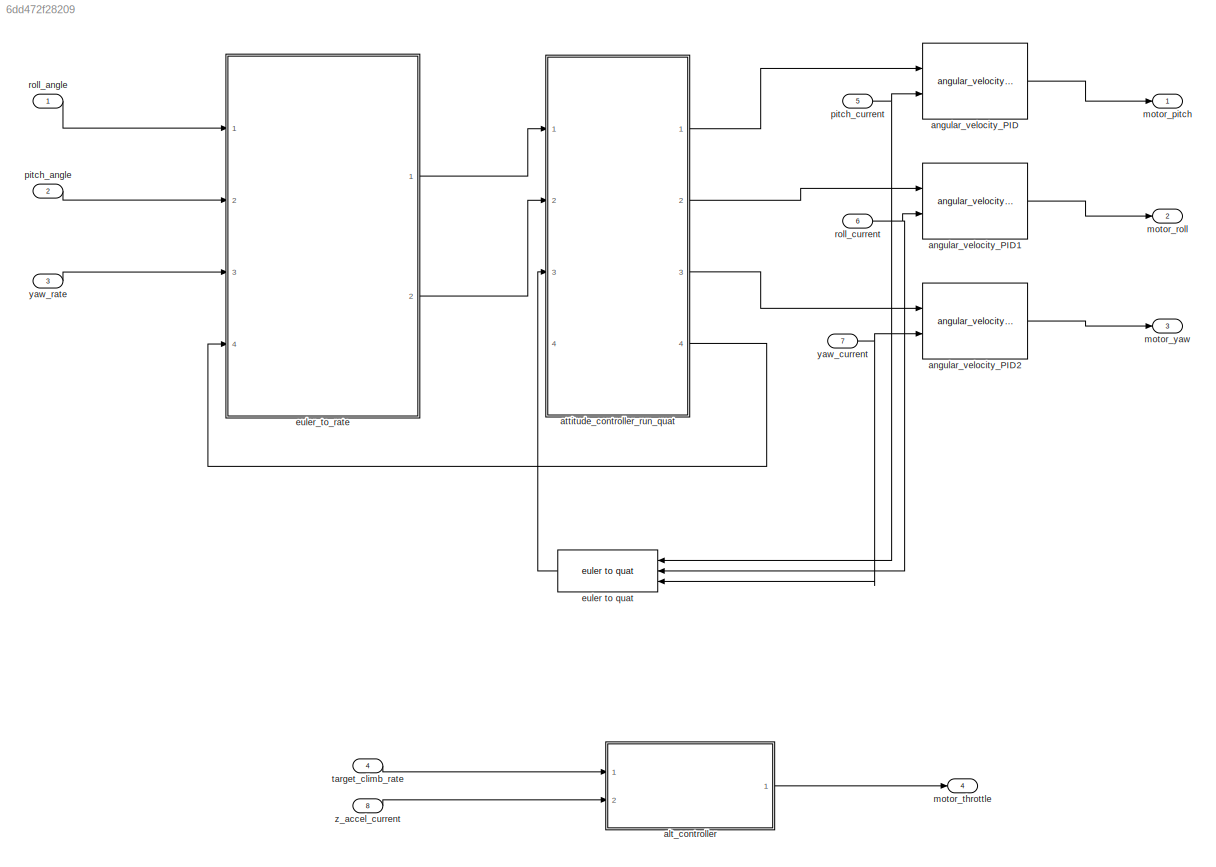
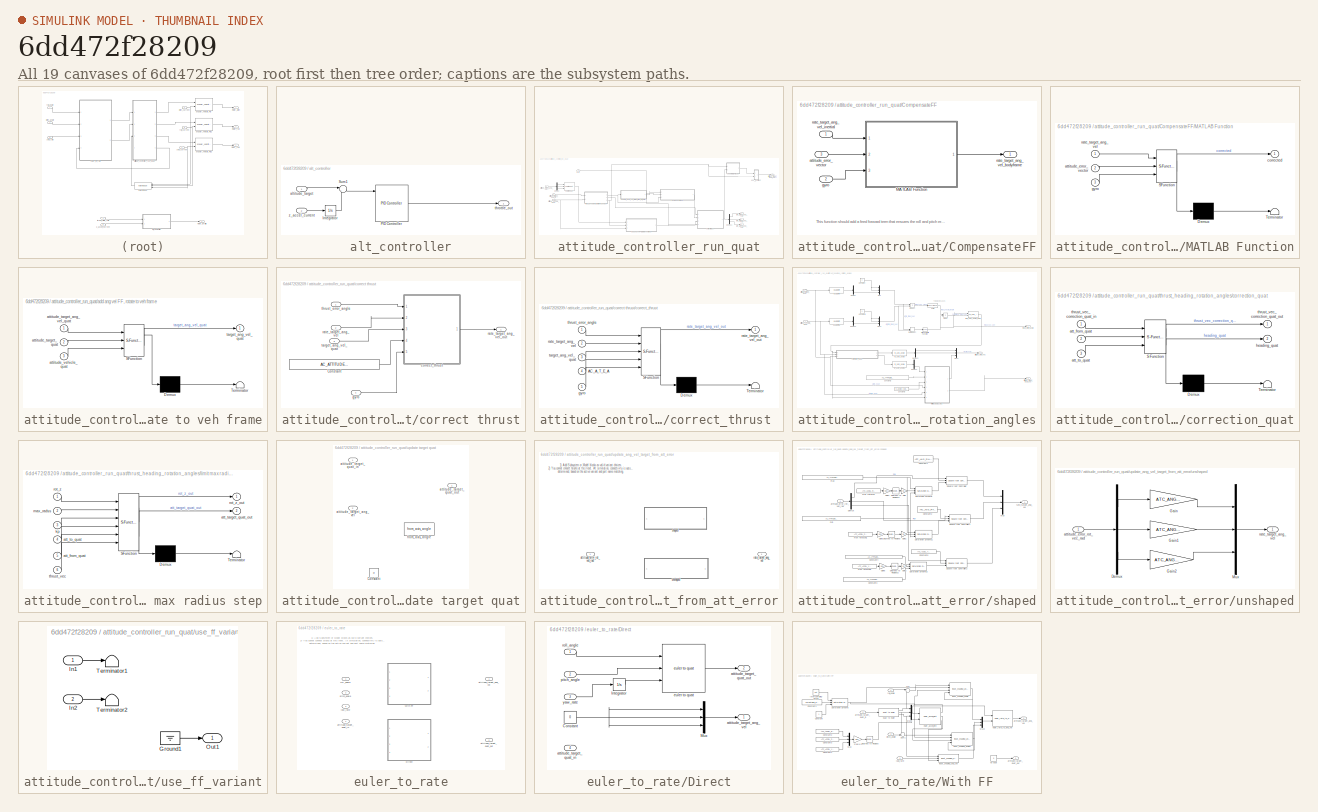
[diagram: thumbnail index - all 19 canvases of the model, root first then tree order]
MODEL slx_6dd472f28209
KIND model
CONFIG AbsTol = auto
CONFIG FixedStep = auto
CONFIG MaxStep = auto
CONFIG MinStep = auto
CONFIG RelTol = 1e-3
CONFIG SampleTimeConstraint = Unconstrained
CONFIG Solver = ode45
CONFIG SolverMode = Auto
CONFIG SolverName = ode45
CONFIG StartTime = 0.0
CONFIG StopTime = 10.0
BLOCK [SubSystem] alt_controller
  Ports = [2, 1]
  RequestExecContextInheritance = off
  Variant = off
BLOCK [Integrator] alt_controller/Integrator
  Ports = [1, 1]
BLOCK [Reference] alt_controller/PID Controller  REF=simulink/Continuous/PID Controller
  Ports = [5, 1]
  SourceBlock = simulink/Continuous/PID Controller
  SourceType = PID 1dof
BLOCK [Sum] alt_controller/Sum1
  IconShape = round
  InputSameDT = off
  Inputs = |+-
  OutDataTypeStr = Inherit: Inherit via internal rule
  Ports = [2, 1]
  SaturateOnIntegerOverflow = off
BLOCK [Inport] alt_controller/altitude_target
  IconDisplay = Port number
BLOCK [Outport] alt_controller/throttle_out
  IconDisplay = Port number
BLOCK [Inport] alt_controller/z_accel_current
  IconDisplay = Port number
  Port = 2
BLOCK [Reference] angular_velocity_PID  REF=arducopter_library/angular_velocity_PID  (lib defined in slx_6a90c81226f2)
  Ports = [2, 1]
  SourceBlock = arducopter_library/angular_velocity_PID
  SourceType = The pid controller for angular velocity
BLOCK [Reference] angular_velocity_PID1  REF=arducopter_library/angular_velocity_PID  (lib defined in slx_6a90c81226f2)
  Ports = [2, 1]
  SourceBlock = arducopter_library/angular_velocity_PID
  SourceType = The pid controller for angular velocity
BLOCK [Reference] angular_velocity_PID2  REF=arducopter_library/angular_velocity_PID  (lib defined in slx_6a90c81226f2)
  Ports = [2, 1]
  SourceBlock = arducopter_library/angular_velocity_PID
  SourceType = The pid controller for angular velocity
BLOCK [SubSystem] attitude_controller_run_quat
  Ports = [4, 4]
  RequestExecContextInheritance = off
  Variant = off
BLOCK [SubSystem] attitude_controller_run_quat/CompensateFF
  Ports = [3, 1]
  RequestExecContextInheritance = off
  Variant = off
BLOCK [SubSystem] attitude_controller_run_quat/CompensateFF/MATLAB Function
  ErrorFcn = Stateflow.Translate.translate
  PermitHierarchicalResolution = ExplicitOnly
  Ports = [3, 1]
  RequestExecContextInheritance = off
  SFBlockType = MATLAB Function
  TreatAsAtomicUnit = on
  Variant = off
BLOCK [Demux] attitude_controller_run_quat/CompensateFF/MATLAB Function/ Demux 
  Outputs = 1
  Ports = [1, 1]
BLOCK [S-Function] attitude_controller_run_quat/CompensateFF/MATLAB Function/ SFunction 
  EnableBusSupport = off
  FunctionName = sf_sfun
  PortCounts = [3 2]
  Ports = [3, 2]
  SFunctionDeploymentMode = off
  Tag = Stateflow S-Function attitude_controller 5
BLOCK [Terminator] attitude_controller_run_quat/CompensateFF/MATLAB Function/ Terminator 
BLOCK [Inport] attitude_controller_run_quat/CompensateFF/MATLAB Function/attitude_error_vector
  IconDisplay = Port number
  Port = 2
BLOCK [Outport] attitude_controller_run_quat/CompensateFF/MATLAB Function/corrected
  IconDisplay = Port number
BLOCK [Inport] attitude_controller_run_quat/CompensateFF/MATLAB Function/gyro
  IconDisplay = Port number
  Port = 3
BLOCK [Inport] attitude_controller_run_quat/CompensateFF/MATLAB Function/rate_target_ang_vel
  IconDisplay = Port number
BLOCK [Inport] attitude_controller_run_quat/CompensateFF/attitude_error_vector 
  IconDisplay = Port number
  Port = 3
BLOCK [Inport] attitude_controller_run_quat/CompensateFF/gyro 
  IconDisplay = Port number
  Port = 2
BLOCK [Outport] attitude_controller_run_quat/CompensateFF/rate_target_ang_vel_bodyframe
  IconDisplay = Port number
BLOCK [Inport] attitude_controller_run_quat/CompensateFF/rate_target_ang_vel_inertial
  IconDisplay = Port number
BLOCK [Demux] attitude_controller_run_quat/Demux
  DisplayOption = bar
  Outputs = 3
  Ports = [1, 3]
BLOCK [Demux] attitude_controller_run_quat/Demux1
  DisplayOption = bar
  Outputs = 3
  Ports = [1, 3]
BLOCK [SubSystem] attitude_controller_run_quat/add ang vel FF, rotate to veh frame
  ErrorFcn = Stateflow.Translate.translate
  PermitHierarchicalResolution = ExplicitOnly
  Ports = [3, 1]
  RequestExecContextInheritance = off
  SFBlockType = MATLAB Function
  TreatAsAtomicUnit = on
  Variant = off
BLOCK [Demux] attitude_controller_run_quat/add ang vel FF, rotate to veh frame/ Demux 
  Outputs = 1
  Ports = [1, 1]
BLOCK [S-Function] attitude_controller_run_quat/add ang vel FF, rotate to veh frame/ SFunction 
  EnableBusSupport = off
  FunctionName = sf_sfun
  PortCounts = [3 2]
  Ports = [3, 2]
  SFunctionDeploymentMode = off
  Tag = Stateflow S-Function attitude_controller 2
BLOCK [Terminator] attitude_controller_run_quat/add ang vel FF, rotate to veh frame/ Terminator 
BLOCK [Inport] attitude_controller_run_quat/add ang vel FF, rotate to veh frame/attitude_target_ang_vel_quat
  IconDisplay = Port number
BLOCK [Inport] attitude_controller_run_quat/add ang vel FF, rotate to veh frame/attitude_target_quat
  IconDisplay = Port number
  Port = 2
BLOCK [Inport] attitude_controller_run_quat/add ang vel FF, rotate to veh frame/attitude_vehicle_quat
  IconDisplay = Port number
  Port = 3
BLOCK [Outport] attitude_controller_run_quat/add ang vel FF, rotate to veh frame/target_ang_vel_quat
  IconDisplay = Port number
BLOCK [Inport] attitude_controller_run_quat/attitude_target_ang_vel
  IconDisplay = Port number
BLOCK [Inport] attitude_controller_run_quat/attitude_target_quat_in
  IconDisplay = Port number
  Port = 2
BLOCK [Outport] attitude_controller_run_quat/attitude_target_quat_out
  IconDisplay = Port number
  Port = 4
BLOCK [Inport] attitude_controller_run_quat/attitude_vehicle_quat
  IconDisplay = Port number
  Port = 3
BLOCK [SubSystem] attitude_controller_run_quat/correct thrust
  Ports = [4, 1]
  RequestExecContextInheritance = off
  Variant = off
BLOCK [Constant] attitude_controller_run_quat/correct thrust/Constant
  Value = AC_ATTITUDE_THRUST_ERROR_ANGLE
BLOCK [SubSystem] attitude_controller_run_quat/correct thrust/correct_thrust 
  ErrorFcn = Stateflow.Translate.translate
  PermitHierarchicalResolution = ExplicitOnly
  Ports = [5, 1]
  RequestExecContextInheritance = off
  SFBlockType = MATLAB Function
  TreatAsAtomicUnit = on
  Variant = off
BLOCK [Demux] attitude_controller_run_quat/correct thrust/correct_thrust / Demux 
  Outputs = 1
  Ports = [1, 1]
BLOCK [S-Function] attitude_controller_run_quat/correct thrust/correct_thrust / SFunction 
  EnableBusSupport = off
  FunctionName = sf_sfun
  PortCounts = [5 2]
  Ports = [5, 2]
  SFunctionDeploymentMode = off
  Tag = Stateflow S-Function attitude_controller 4
BLOCK [Terminator] attitude_controller_run_quat/correct thrust/correct_thrust / Terminator 
BLOCK [Inport] attitude_controller_run_quat/correct thrust/correct_thrust /AC_A_T_E_A
  IconDisplay = Port number
  Port = 4
BLOCK [Inport] attitude_controller_run_quat/correct thrust/correct_thrust /gyro
  IconDisplay = Port number
  Port = 5
BLOCK [Inport] attitude_controller_run_quat/correct thrust/correct_thrust /rate_target_ang_vel
  IconDisplay = Port number
  Port = 2
BLOCK [Outport] attitude_controller_run_quat/correct thrust/correct_thrust /rate_target_ang_vel_out
  IconDisplay = Port number
BLOCK [Inport] attitude_controller_run_quat/correct thrust/correct_thrust /target_ang_vel_quat
  IconDisplay = Port number
  Port = 3
BLOCK [Inport] attitude_controller_run_quat/correct thrust/correct_thrust /thrust_error_angle
  IconDisplay = Port number
BLOCK [Inport] attitude_controller_run_quat/correct thrust/gyro 
  IconDisplay = Port number
  Port = 4
BLOCK [Inport] attitude_controller_run_quat/correct thrust/rate_target_ang_vel
  IconDisplay = Port number
  Port = 2
BLOCK [Outport] attitude_controller_run_quat/correct thrust/rate_target_ang_vel_out
  IconDisplay = Port number
BLOCK [Inport] attitude_controller_run_quat/correct thrust/target_ang_vel_quat
  IconDisplay = Port number
  Port = 3
BLOCK [Inport] attitude_controller_run_quat/correct thrust/thrust_error_angle
  IconDisplay = Port number
BLOCK [Reference] attitude_controller_run_quat/euler to quat  REF=arducopter_library/euler to quat  (lib defined in slx_6a90c81226f2)
  Ports = [3, 1]
  SourceBlock = arducopter_library/euler to quat
BLOCK [Inport] attitude_controller_run_quat/gyro 
  IconDisplay = Port number
  Port = 4
BLOCK [Outport] attitude_controller_run_quat/rate_target_ang_vel.x
  IconDisplay = Port number
BLOCK [Outport] attitude_controller_run_quat/rate_target_ang_vel.y
  IconDisplay = Port number
  Port = 2
BLOCK [Outport] attitude_controller_run_quat/rate_target_ang_vel.z
  IconDisplay = Port number
  Port = 3
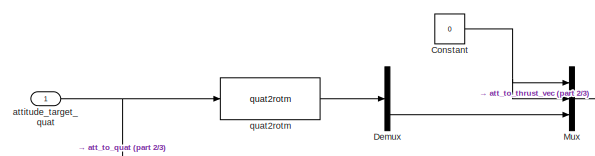
[diagram: attitude_controller_run_quat/thrust_heading_rotation_angles - part 1/3, top left region]
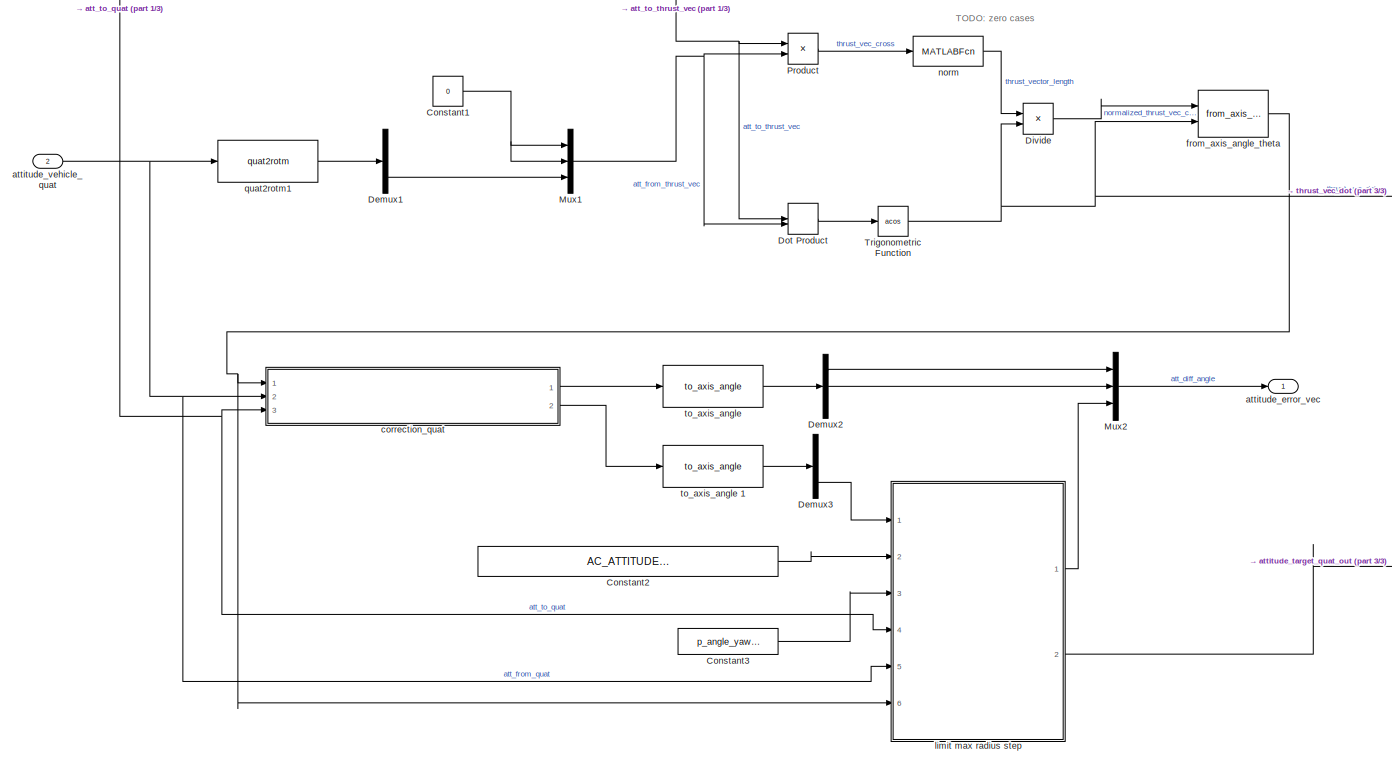
[diagram: attitude_controller_run_quat/thrust_heading_rotation_angles - part 2/3, most of the canvas]
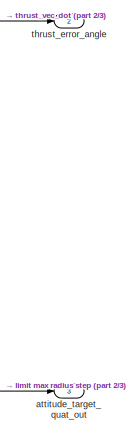
[diagram: attitude_controller_run_quat/thrust_heading_rotation_angles - part 3/3, middle right region]
BLOCK [SubSystem] attitude_controller_run_quat/thrust_heading_rotation_angles
  Ports = [2, 3]
  RequestExecContextInheritance = off
  Variant = off
BLOCK [Constant] attitude_controller_run_quat/thrust_heading_rotation_angles/Constant
  Value = 0
BLOCK [Constant] attitude_controller_run_quat/thrust_heading_rotation_angles/Constant1
  Value = 0
BLOCK [Constant] attitude_controller_run_quat/thrust_heading_rotation_angles/Constant2
  Value = AC_ATTITUDE_ACCEL_Y_CONTROLLER_MAX_RADSS
BLOCK [Constant] attitude_controller_run_quat/thrust_heading_rotation_angles/Constant3
  Value = p_angle_yaw_kp
BLOCK [Demux] attitude_controller_run_quat/thrust_heading_rotation_angles/Demux
  DisplayOption = bar
  Outputs = 3
  Ports = [1, 3]
BLOCK [Demux] attitude_controller_run_quat/thrust_heading_rotation_angles/Demux1
  DisplayOption = bar
  Outputs = 3
  Ports = [1, 3]
BLOCK [Demux] attitude_controller_run_quat/thrust_heading_rotation_angles/Demux2
  DisplayOption = bar
  Outputs = 3
  Ports = [1, 3]
BLOCK [Demux] attitude_controller_run_quat/thrust_heading_rotation_angles/Demux3
  DisplayOption = bar
  Outputs = 3
  Ports = [1, 3]
BLOCK [Product] attitude_controller_run_quat/thrust_heading_rotation_angles/Divide
  InputSameDT = off
  Inputs = */
  OutDataTypeStr = Inherit: Inherit via internal rule
  Ports = [2, 1]
  RndMeth = Floor
  SaturateOnIntegerOverflow = off
BLOCK [DotProduct] attitude_controller_run_quat/thrust_heading_rotation_angles/Dot Product
  OutDataTypeStr = Inherit: Inherit via internal rule
  OutMax = 1
  OutMin = -1
BLOCK [Mux] attitude_controller_run_quat/thrust_heading_rotation_angles/Mux
  DisplayOption = bar
  Inputs = 3
  Ports = [3, 1]
BLOCK [Mux] attitude_controller_run_quat/thrust_heading_rotation_angles/Mux1
  DisplayOption = bar
  Inputs = 3
  Ports = [3, 1]
BLOCK [Mux] attitude_controller_run_quat/thrust_heading_rotation_angles/Mux2
  DisplayOption = bar
  Inputs = 3
  Ports = [3, 1]
BLOCK [Product] attitude_controller_run_quat/thrust_heading_rotation_angles/Product
  InputSameDT = off
  OutDataTypeStr = Inherit: Inherit via internal rule
  Ports = [2, 1]
  RndMeth = Floor
  SaturateOnIntegerOverflow = off
BLOCK [Trigonometry] attitude_controller_run_quat/thrust_heading_rotation_angles/Trigonometric Function
  Operator = acos
  Ports = [1, 1]
BLOCK [Outport] attitude_controller_run_quat/thrust_heading_rotation_angles/attitude_error_vec
  IconDisplay = Port number
BLOCK [Inport] attitude_controller_run_quat/thrust_heading_rotation_angles/attitude_target_quat
  IconDisplay = Port number
BLOCK [Outport] attitude_controller_run_quat/thrust_heading_rotation_angles/attitude_target_quat_out
  IconDisplay = Port number
  Port = 3
BLOCK [Inport] attitude_controller_run_quat/thrust_heading_rotation_angles/attitude_vehicle_quat
  IconDisplay = Port number
  Port = 2
BLOCK [SubSystem] attitude_controller_run_quat/thrust_heading_rotation_angles/correction_quat
  ErrorFcn = Stateflow.Translate.translate
  PermitHierarchicalResolution = ExplicitOnly
  Ports = [3, 2]
  RequestExecContextInheritance = off
  SFBlockType = MATLAB Function
  TreatAsAtomicUnit = on
  Variant = off
BLOCK [Demux] attitude_controller_run_quat/thrust_heading_rotation_angles/correction_quat/ Demux 
  Outputs = 1
  Ports = [1, 1]
BLOCK [S-Function] attitude_controller_run_quat/thrust_heading_rotation_angles/correction_quat/ SFunction 
  EnableBusSupport = off
  FunctionName = sf_sfun
  PortCounts = [3 3]
  Ports = [3, 3]
  SFunctionDeploymentMode = off
  Tag = Stateflow S-Function attitude_controller 1
BLOCK [Terminator] attitude_controller_run_quat/thrust_heading_rotation_angles/correction_quat/ Terminator 
BLOCK [Inport] attitude_controller_run_quat/thrust_heading_rotation_angles/correction_quat/att_from_quat
  IconDisplay = Port number
  Port = 2
BLOCK [Inport] attitude_controller_run_quat/thrust_heading_rotation_angles/correction_quat/att_to_quat
  IconDisplay = Port number
  Port = 3
BLOCK [Outport] attitude_controller_run_quat/thrust_heading_rotation_angles/correction_quat/heading_quat
  IconDisplay = Port number
  Port = 2
BLOCK [Inport] attitude_controller_run_quat/thrust_heading_rotation_angles/correction_quat/thrust_vec_correction_quat_in
  IconDisplay = Port number
BLOCK [Outport] attitude_controller_run_quat/thrust_heading_rotation_angles/correction_quat/thrust_vec_correction_quat_out
  IconDisplay = Port number
BLOCK [Reference] attitude_controller_run_quat/thrust_heading_rotation_angles/from_axis_angle_theta  REF=arducopter_library/from_axis_angle_theta  (lib defined in slx_6a90c81226f2)
  Ports = [2, 1]
  SourceBlock = arducopter_library/from_axis_angle_theta
  SourceType = SubSystem
BLOCK [SubSystem] attitude_controller_run_quat/thrust_heading_rotation_angles/limit max radius step
  ErrorFcn = Stateflow.Translate.translate
  PermitHierarchicalResolution = ExplicitOnly
  Ports = [6, 2]
  RequestExecContextInheritance = off
  SFBlockType = MATLAB Function
  TreatAsAtomicUnit = on
  Variant = off
BLOCK [Demux] attitude_controller_run_quat/thrust_heading_rotation_angles/limit max radius step/ Demux 
  Outputs = 1
  Ports = [1, 1]
BLOCK [S-Function] attitude_controller_run_quat/thrust_heading_rotation_angles/limit max radius step/ SFunction 
  EnableBusSupport = off
  FunctionName = sf_sfun
  PortCounts = [6 3]
  Ports = [6, 3]
  SFunctionDeploymentMode = off
  Tag = Stateflow S-Function attitude_controller 3
BLOCK [Terminator] attitude_controller_run_quat/thrust_heading_rotation_angles/limit max radius step/ Terminator 
BLOCK [Inport] attitude_controller_run_quat/thrust_heading_rotation_angles/limit max radius step/att_from_quat
  IconDisplay = Port number
  Port = 5
BLOCK [Outport] attitude_controller_run_quat/thrust_heading_rotation_angles/limit max radius step/att_target_quat_out
  IconDisplay = Port number
  Port = 2
BLOCK [Inport] attitude_controller_run_quat/thrust_heading_rotation_angles/limit max radius step/att_to_quat
  IconDisplay = Port number
  Port = 4
BLOCK [Inport] attitude_controller_run_quat/thrust_heading_rotation_angles/limit max radius step/kp
  IconDisplay = Port number
  Port = 3
BLOCK [Inport] attitude_controller_run_quat/thrust_heading_rotation_angles/limit max radius step/max_radss
  IconDisplay = Port number
  Port = 2
BLOCK [Inport] attitude_controller_run_quat/thrust_heading_rotation_angles/limit max radius step/rot_z
  IconDisplay = Port number
BLOCK [Outport] attitude_controller_run_quat/thrust_heading_rotation_angles/limit max radius step/rot_z_out
  IconDisplay = Port number
BLOCK [Inport] attitude_controller_run_quat/thrust_heading_rotation_angles/limit max radius step/thrust_vec
  IconDisplay = Port number
  Port = 6
BLOCK [MATLABFcn] attitude_controller_run_quat/thrust_heading_rotation_angles/norm 
  MATLABFcn = norm
  Ports = [1, 1]
BLOCK [Reference] attitude_controller_run_quat/thrust_heading_rotation_angles/quat2rotm  REF=arducopter_library/quat2rotm  (lib defined in slx_6a90c81226f2)
  Ports = [1, 1]
  SourceBlock = arducopter_library/quat2rotm
BLOCK [Reference] attitude_controller_run_quat/thrust_heading_rotation_angles/quat2rotm1  REF=arducopter_library/quat2rotm  (lib defined in slx_6a90c81226f2)
  Ports = [1, 1]
  SourceBlock = arducopter_library/quat2rotm
BLOCK [Outport] attitude_controller_run_quat/thrust_heading_rotation_angles/thrust_error_angle
  IconDisplay = Port number
  Port = 2
BLOCK [Reference] attitude_controller_run_quat/thrust_heading_rotation_angles/to_axis_angle   REF=arducopter_library/to_axis_angle  (lib defined in slx_6a90c81226f2)

  Ports = [1, 1]
  SourceBlock = arducopter_library/to_axis_angle
  SourceType = SubSystem
BLOCK [Reference] attitude_controller_run_quat/thrust_heading_rotation_angles/to_axis_angle 1  REF=arducopter_library/to_axis_angle  (lib defined in slx_6a90c81226f2)

  Ports = [1, 1]
  SourceBlock = arducopter_library/to_axis_angle
  SourceType = SubSystem
BLOCK [SubSystem] attitude_controller_run_quat/update target quat
  Ports = [2, 1]
  RequestExecContextInheritance = off
  Variant = off
BLOCK [Constant] attitude_controller_run_quat/update target quat/Constant
  Value = dt
BLOCK [Inport] attitude_controller_run_quat/update target quat/attitude_target_ang_vel
  IconDisplay = Port number
  Port = 2
BLOCK [Inport] attitude_controller_run_quat/update target quat/attitude_target_quat_in
  IconDisplay = Port number
BLOCK [Outport] attitude_controller_run_quat/update target quat/attitude_target_quat_out
  IconDisplay = Port number
BLOCK [Reference] attitude_controller_run_quat/update target quat/from_axis_angle  REF=arducopter_library/from_axis_angle  (lib defined in slx_6a90c81226f2)
  Ports = [1, 1]
  SourceBlock = arducopter_library/from_axis_angle
BLOCK [SubSystem] attitude_controller_run_quat/update_ang_vel_target_from_att_error
  Ports = [1, 1]
  RequestExecContextInheritance = off
  Variant = on
BLOCK [Inport] attitude_controller_run_quat/update_ang_vel_target_from_att_error/attitude_error_rot_vec_rad
  IconDisplay = Port number
BLOCK [Outport] attitude_controller_run_quat/update_ang_vel_target_from_att_error/rate_target_ang_vel
  IconDisplay = Port number
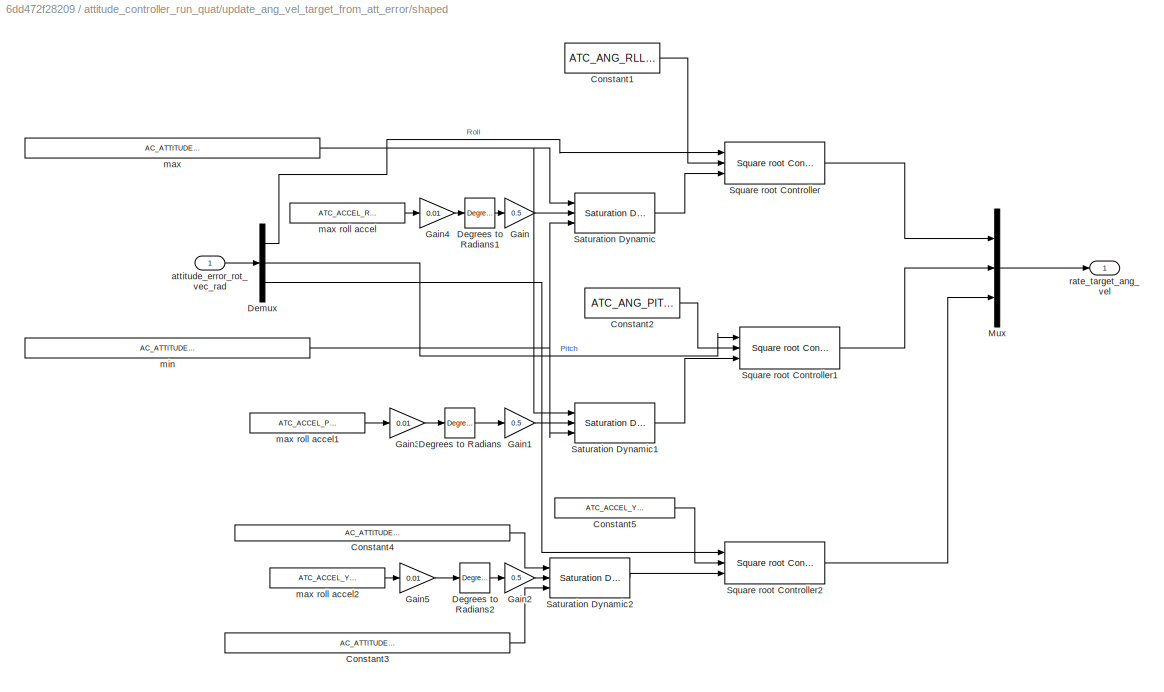
BLOCK [SubSystem] attitude_controller_run_quat/update_ang_vel_target_from_att_error/shaped
  Ports = [1, 1]
  RequestExecContextInheritance = off
  Variant = off
  VariantControl = USE_FF_VARIANT
BLOCK [Constant] attitude_controller_run_quat/update_ang_vel_target_from_att_error/shaped/Constant1
  Value = ATC_ANG_RLL_P
BLOCK [Constant] attitude_controller_run_quat/update_ang_vel_target_from_att_error/shaped/Constant2
  Value = ATC_ANG_PIT_P
BLOCK [Constant] attitude_controller_run_quat/update_ang_vel_target_from_att_error/shaped/Constant3
  Value = AC_ATTITUDE_ACCEL_Y_CONTROLLER_MIN_RADSS
BLOCK [Constant] attitude_controller_run_quat/update_ang_vel_target_from_att_error/shaped/Constant4
  Value = AC_ATTITUDE_ACCEL_Y_CONTROLLER_MAX_RADSS
BLOCK [Constant] attitude_controller_run_quat/update_ang_vel_target_from_att_error/shaped/Constant5
  Value = ATC_ACCEL_Y_MAX
BLOCK [Reference] attitude_controller_run_quat/update_ang_vel_target_from_att_error/shaped/Degrees to Radians  REF=simulink_extras/Transformations/Degrees to
Radians
  Ports = [1, 1]
  SourceBlock = simulink_extras/Transformations/Degrees to\nRadians
  SourceType = DegreesToRadians
BLOCK [Reference] attitude_controller_run_quat/update_ang_vel_target_from_att_error/shaped/Degrees to Radians1  REF=simulink_extras/Transformations/Degrees to
Radians
  Ports = [1, 1]
  SourceBlock = simulink_extras/Transformations/Degrees to\nRadians
  SourceType = DegreesToRadians
BLOCK [Reference] attitude_controller_run_quat/update_ang_vel_target_from_att_error/shaped/Degrees to Radians2  REF=simulink_extras/Transformations/Degrees to
Radians
  Ports = [1, 1]
  SourceBlock = simulink_extras/Transformations/Degrees to\nRadians
  SourceType = DegreesToRadians
BLOCK [Demux] attitude_controller_run_quat/update_ang_vel_target_from_att_error/shaped/Demux
  DisplayOption = bar
  Outputs = 3
  Ports = [1, 3]
BLOCK [Gain] attitude_controller_run_quat/update_ang_vel_target_from_att_error/shaped/Gain
  Gain = 0.5
  OutDataTypeStr = Inherit: Inherit via internal rule
  ParamDataTypeStr = Inherit: Inherit via internal rule
  SaturateOnIntegerOverflow = off
BLOCK [Gain] attitude_controller_run_quat/update_ang_vel_target_from_att_error/shaped/Gain1
  Gain = 0.5
  OutDataTypeStr = Inherit: Inherit via internal rule
  ParamDataTypeStr = Inherit: Inherit via internal rule
  SaturateOnIntegerOverflow = off
BLOCK [Gain] attitude_controller_run_quat/update_ang_vel_target_from_att_error/shaped/Gain2
  Gain = 0.5
  OutDataTypeStr = Inherit: Inherit via internal rule
  ParamDataTypeStr = Inherit: Inherit via internal rule
  SaturateOnIntegerOverflow = off
BLOCK [Gain] attitude_controller_run_quat/update_ang_vel_target_from_att_error/shaped/Gain3
  Gain = 0.01
  OutDataTypeStr = Inherit: Inherit via internal rule
  ParamDataTypeStr = Inherit: Inherit via internal rule
  SaturateOnIntegerOverflow = off
BLOCK [Gain] attitude_controller_run_quat/update_ang_vel_target_from_att_error/shaped/Gain4
  Gain = 0.01
  OutDataTypeStr = Inherit: Inherit via internal rule
  ParamDataTypeStr = Inherit: Inherit via internal rule
  SaturateOnIntegerOverflow = off
BLOCK [Gain] attitude_controller_run_quat/update_ang_vel_target_from_att_error/shaped/Gain5
  Gain = 0.01
  OutDataTypeStr = Inherit: Inherit via internal rule
  ParamDataTypeStr = Inherit: Inherit via internal rule
  SaturateOnIntegerOverflow = off
BLOCK [Mux] attitude_controller_run_quat/update_ang_vel_target_from_att_error/shaped/Mux
  DisplayOption = bar
  Inputs = 3
  Ports = [3, 1]
BLOCK [Reference] attitude_controller_run_quat/update_ang_vel_target_from_att_error/shaped/Saturation Dynamic  REF=simulink/Discontinuities/Saturation
Dynamic
  Ports = [3, 1]
  SourceBlock = simulink/Discontinuities/Saturation\nDynamic
  SourceType = Saturation Dynamic
BLOCK [Reference] attitude_controller_run_quat/update_ang_vel_target_from_att_error/shaped/Saturation Dynamic1  REF=simulink/Discontinuities/Saturation
Dynamic
  Ports = [3, 1]
  SourceBlock = simulink/Discontinuities/Saturation\nDynamic
  SourceType = Saturation Dynamic
BLOCK [Reference] attitude_controller_run_quat/update_ang_vel_target_from_att_error/shaped/Saturation Dynamic2  REF=simulink/Discontinuities/Saturation
Dynamic
  Ports = [3, 1]
  SourceBlock = simulink/Discontinuities/Saturation\nDynamic
  SourceType = Saturation Dynamic
BLOCK [Reference] attitude_controller_run_quat/update_ang_vel_target_from_att_error/shaped/Square root Controller  REF=arducopter_library/Square root Controller  (lib defined in slx_6a90c81226f2)
  Ports = [3, 1]
  SourceBlock = arducopter_library/Square root Controller
BLOCK [Reference] attitude_controller_run_quat/update_ang_vel_target_from_att_error/shaped/Square root Controller1  REF=arducopter_library/Square root Controller  (lib defined in slx_6a90c81226f2)
  Ports = [3, 1]
  SourceBlock = arducopter_library/Square root Controller
BLOCK [Reference] attitude_controller_run_quat/update_ang_vel_target_from_att_error/shaped/Square root Controller2  REF=arducopter_library/Square root Controller  (lib defined in slx_6a90c81226f2)
  Ports = [3, 1]
  SourceBlock = arducopter_library/Square root Controller
BLOCK [Inport] attitude_controller_run_quat/update_ang_vel_target_from_att_error/shaped/attitude_error_rot_vec_rad
  IconDisplay = Port number
BLOCK [Constant] attitude_controller_run_quat/update_ang_vel_target_from_att_error/shaped/max
  Value = AC_ATTITUDE_ACCEL_RP_CONTROLLER_MAX_RADSS
BLOCK [Constant] attitude_controller_run_quat/update_ang_vel_target_from_att_error/shaped/max roll accel
  Value = ATC_ACCEL_R_MAX
BLOCK [Constant] attitude_controller_run_quat/update_ang_vel_target_from_att_error/shaped/max roll accel1
  Value = ATC_ACCEL_P_MAX
BLOCK [Constant] attitude_controller_run_quat/update_ang_vel_target_from_att_error/shaped/max roll accel2
  Value = ATC_ACCEL_Y_MAX
BLOCK [Constant] attitude_controller_run_quat/update_ang_vel_target_from_att_error/shaped/min
  Value = AC_ATTITUDE_ACCEL_RP_CONTROLLER_MIN_RADDS
BLOCK [Outport] attitude_controller_run_quat/update_ang_vel_target_from_att_error/shaped/rate_target_ang_vel
  IconDisplay = Port number
BLOCK [SubSystem] attitude_controller_run_quat/update_ang_vel_target_from_att_error/unshaped
  Ports = [1, 1]
  RequestExecContextInheritance = off
  Variant = off
  VariantControl = USE_DIRECT_VARIANT
BLOCK [Demux] attitude_controller_run_quat/update_ang_vel_target_from_att_error/unshaped/Demux
  DisplayOption = bar
  Outputs = 3
  Ports = [1, 3]
BLOCK [Gain] attitude_controller_run_quat/update_ang_vel_target_from_att_error/unshaped/Gain
  Gain = ATC_ANG_RLL_P
  OutDataTypeStr = Inherit: Inherit via internal rule
  ParamDataTypeStr = Inherit: Inherit via internal rule
  SaturateOnIntegerOverflow = off
BLOCK [Gain] attitude_controller_run_quat/update_ang_vel_target_from_att_error/unshaped/Gain1
  Gain = ATC_ANG_PIT_P
  OutDataTypeStr = Inherit: Inherit via internal rule
  ParamDataTypeStr = Inherit: Inherit via internal rule
  SaturateOnIntegerOverflow = off
BLOCK [Gain] attitude_controller_run_quat/update_ang_vel_target_from_att_error/unshaped/Gain2
  Gain = ATC_ANG_YAW_P
  OutDataTypeStr = Inherit: Inherit via internal rule
  ParamDataTypeStr = Inherit: Inherit via internal rule
  SaturateOnIntegerOverflow = off
BLOCK [Mux] attitude_controller_run_quat/update_ang_vel_target_from_att_error/unshaped/Mux
  DisplayOption = bar
  Inputs = 3
  Ports = [3, 1]
BLOCK [Inport] attitude_controller_run_quat/update_ang_vel_target_from_att_error/unshaped/attitude_error_rot_vec_rad
  IconDisplay = Port number
BLOCK [Outport] attitude_controller_run_quat/update_ang_vel_target_from_att_error/unshaped/rate_target_ang_vel
  IconDisplay = Port number
BLOCK [SubSystem] attitude_controller_run_quat/use_ff_variant
  Description = Replaced Block
  Ports = [2, 1]
  RequestExecContextInheritance = off
  Variant = off
BLOCK [Ground] attitude_controller_run_quat/use_ff_variant/Ground1
BLOCK [Inport] attitude_controller_run_quat/use_ff_variant/In1
  IconDisplay = Port number
BLOCK [Inport] attitude_controller_run_quat/use_ff_variant/In2
  IconDisplay = Port number
  Port = 2
BLOCK [Outport] attitude_controller_run_quat/use_ff_variant/Out1
  IconDisplay = Port number
BLOCK [Terminator] attitude_controller_run_quat/use_ff_variant/Terminator1
BLOCK [Terminator] attitude_controller_run_quat/use_ff_variant/Terminator2
BLOCK [Reference] euler to quat  REF=arducopter_library/euler to quat  (lib defined in slx_6a90c81226f2)
  Ports = [3, 1]
  SourceBlock = arducopter_library/euler to quat
BLOCK [SubSystem] euler_to_rate
  Ports = [4, 2]
  RequestExecContextInheritance = off
  Variant = on
BLOCK [SubSystem] euler_to_rate/Direct
  Ports = [4, 2]
  RequestExecContextInheritance = off
  Variant = off
  VariantControl = USE_DIRECT_VARIANT
BLOCK [Constant] euler_to_rate/Direct/Constant
  Value = 0
BLOCK [Integrator] euler_to_rate/Direct/Integrator
  Ports = [1, 1]
BLOCK [Mux] euler_to_rate/Direct/Mux
  DisplayOption = bar
  Inputs = 3
  Ports = [3, 1]
BLOCK [Outport] euler_to_rate/Direct/attitude_target_ang_vel
  IconDisplay = Port number
BLOCK [Inport] euler_to_rate/Direct/attitude_target_quat_in
  IconDisplay = Port number
  Port = 4
BLOCK [Outport] euler_to_rate/Direct/attitude_target_quat_out
  IconDisplay = Port number
  Port = 2
BLOCK [Reference] euler_to_rate/Direct/euler to quat  REF=arducopter_library/euler to quat  (lib defined in slx_6a90c81226f2)
  Ports = [3, 1]
  SourceBlock = arducopter_library/euler to quat
BLOCK [Inport] euler_to_rate/Direct/pitch_angle
  IconDisplay = Port number
  Port = 2
BLOCK [Inport] euler_to_rate/Direct/roll_angle
  IconDisplay = Port number
BLOCK [Inport] euler_to_rate/Direct/yaw_rate
  IconDisplay = Port number
  Port = 3
BLOCK [SubSystem] euler_to_rate/With FF
  Ports = [4, 2]
  RequestExecContextInheritance = off
  Variant = off
  VariantControl = USE_FF_VARIANT
BLOCK [Gain] euler_to_rate/With FF/2rad//s//s
  Gain = 0.01
  OutDataTypeStr = Inherit: Inherit via internal rule
  ParamDataTypeStr = Inherit: Inherit via internal rule
  SaturateOnIntegerOverflow = off
BLOCK [Constant] euler_to_rate/With FF/Constant
BLOCK [Constant] euler_to_rate/With FF/Constant1
  Value = smoothing_gain
BLOCK [Constant] euler_to_rate/With FF/Constant2
  Value = ATC_ACCEL_R_MAX
BLOCK [Constant] euler_to_rate/With FF/Constant3
  Value = ATC_ACCEL_P_MAX
BLOCK [Constant] euler_to_rate/With FF/Constant4
  Value = ATC_ACCEL_Y_MAX
BLOCK [Reference] euler_to_rate/With FF/Degrees to Radians  REF=simulink_extras/Transformations/Degrees to
Radians
  Ports = [1, 1]
  SourceBlock = simulink_extras/Transformations/Degrees to\nRadians
  SourceType = DegreesToRadians
BLOCK [Constant] euler_to_rate/With FF/Intersampling Period
  Value = 1/dt
BLOCK [Mux] euler_to_rate/With FF/Mux
  DisplayOption = bar
  Inputs = 3
  Ports = [3, 1]
BLOCK [Mux] euler_to_rate/With FF/Mux1
  DisplayOption = bar
  Inputs = 3
  Ports = [3, 1]
BLOCK [Mux] euler_to_rate/With FF/Mux2
  DisplayOption = bar
  Inputs = 3
  Ports = [3, 1]
BLOCK [Reference] euler_to_rate/With FF/Saturation Dynamic  REF=simulink/Discontinuities/Saturation
Dynamic
  Ports = [3, 1]
  SourceBlock = simulink/Discontinuities/Saturation\nDynamic
  SourceType = Saturation Dynamic
BLOCK [Sum] euler_to_rate/With FF/Sum
  IconShape = round
  InputSameDT = off
  Inputs = |+-
  OutDataTypeStr = Inherit: Inherit via internal rule
  Ports = [2, 1]
  SaturateOnIntegerOverflow = off
BLOCK [Sum] euler_to_rate/With FF/Sum1
  IconShape = round
  InputSameDT = off
  Inputs = -+|
  OutDataTypeStr = Inherit: Inherit via internal rule
  Ports = [2, 1]
  SaturateOnIntegerOverflow = off
BLOCK [Outport] euler_to_rate/With FF/attitude_target_ang_vel
  IconDisplay = Port number
BLOCK [Inport] euler_to_rate/With FF/attitude_target_quat_in
  IconDisplay = Port number
  Port = 4
BLOCK [Outport] euler_to_rate/With FF/attitude_target_quat_out
  IconDisplay = Port number
  Port = 2
BLOCK [Reference] euler_to_rate/With FF/euler_accel_limit  REF=arducopter_library/euler_accel_limit  (lib defined in slx_6a90c81226f2)
  Ports = [2, 3]
  SourceBlock = arducopter_library/euler_accel_limit
BLOCK [Reference] euler_to_rate/With FF/euler_rate_to_ang_vel  REF=arducopter_library/euler_rate_to_ang_vel  (lib defined in slx_6a90c81226f2)
  Ports = [2, 1]
  SourceBlock = arducopter_library/euler_rate_to_ang_vel
BLOCK [Reference] euler_to_rate/With FF/input_shaping_ang_vel  REF=arducopter_library/input_shaping_ang_vel  (lib defined in slx_6a90c81226f2)
  Ports = [3, 1]
  SourceBlock = arducopter_library/input_shaping_ang_vel
BLOCK [Reference] euler_to_rate/With FF/input_shaping_angle  REF=arducopter_library/input_shaping_angle  (lib defined in slx_6a90c81226f2)
  Ports = [4, 1]
  SourceBlock = arducopter_library/input_shaping_angle
BLOCK [Reference] euler_to_rate/With FF/input_shaping_angle1  REF=arducopter_library/input_shaping_angle  (lib defined in slx_6a90c81226f2)
  Ports = [4, 1]
  SourceBlock = arducopter_library/input_shaping_angle
BLOCK [Constant] euler_to_rate/With FF/no quat
  Value = 0
BLOCK [Inport] euler_to_rate/With FF/pitch_angle
  IconDisplay = Port number
  Port = 2
BLOCK [Reference] euler_to_rate/With FF/quat to euler  REF=arducopter_library/quat to euler  (lib defined in slx_6a90c81226f2)
  Ports = [1, 3]
  SourceBlock = arducopter_library/quat to euler
BLOCK [Inport] euler_to_rate/With FF/roll_angle
  IconDisplay = Port number
BLOCK [Inport] euler_to_rate/With FF/yaw_rate
  IconDisplay = Port number
  Port = 3
BLOCK [Outport] euler_to_rate/attitude_target_ang_vel
  IconDisplay = Port number
BLOCK [Inport] euler_to_rate/attitude_target_quat_in
  IconDisplay = Port number
  Port = 4
BLOCK [Outport] euler_to_rate/attitude_target_quat_out
  IconDisplay = Port number
  Port = 2
BLOCK [Inport] euler_to_rate/pitch_angle
  IconDisplay = Port number
  Port = 2
BLOCK [Inport] euler_to_rate/roll_angle
  IconDisplay = Port number
BLOCK [Inport] euler_to_rate/yaw_rate
  IconDisplay = Port number
  Port = 3
BLOCK [Outport] motor_pitch
  IconDisplay = Port number
BLOCK [Outport] motor_roll
  IconDisplay = Port number
  Port = 2
BLOCK [Outport] motor_throttle
  IconDisplay = Port number
  Port = 4
BLOCK [Outport] motor_yaw
  IconDisplay = Port number
  Port = 3
BLOCK [Inport] pitch_angle
  IconDisplay = Port number
  Port = 2
BLOCK [Inport] pitch_current
  IconDisplay = Port number
  Port = 5
BLOCK [Inport] roll_angle
  IconDisplay = Port number
BLOCK [Inport] roll_current
  IconDisplay = Port number
  Port = 6
BLOCK [Inport] target_climb_rate
  IconDisplay = Port number
  Port = 4
BLOCK [Inport] yaw_current
  IconDisplay = Port number
  Port = 7
BLOCK [Inport] yaw_rate
  IconDisplay = Port number
  Port = 3
BLOCK [Inport] z_accel_current
  IconDisplay = Port number
  Port = 8
ANNOTATION attitude_controller_run_quat/CompensateFF: This function should add a feed forward term that ensures the roll and pitch errors rotate with the body fram instead of the reference frame
ANNOTATION attitude_controller_run_quat/thrust_heading_rotation_angles: TODO: zero cases
ANNOTATION attitude_controller_run_quat/update_ang_vel_target_from_att_error: 1) Add Subsystem or Model blocks as valid variant choices. 2) You cannot connect blocks at this level. At simulation, connectivity is automatically determined, based on the active variant and port name matching.
ANNOTATION euler_to_rate: 1) Add Subsystem or Model blocks as valid variant choices. 2) You cannot connect blocks at this level. At simulation, connectivity is automatically determined, based on the active variant and port name matching.
LINE alt_controller/Integrator:1 -> alt_controller/Sum1:2
LINE alt_controller/PID Controller:1 -> alt_controller/throttle_out:1
LINE alt_controller/Sum1:1 -> alt_controller/PID Controller:1
LINE alt_controller/altitude_target:1 -> alt_controller/Sum1:1
LINE alt_controller/z_accel_current:1 -> alt_controller/Integrator:1
LINE alt_controller:1 -> motor_throttle:1
LINE angular_velocity_PID1:1 -> motor_roll:1
LINE angular_velocity_PID2:1 -> motor_yaw:1
LINE angular_velocity_PID:1 -> motor_pitch:1
LINE attitude_controller_run_quat/CompensateFF/MATLAB Function:1 -> attitude_controller_run_quat/CompensateFF/rate_target_ang_vel_bodyframe:1
LINE attitude_controller_run_quat/CompensateFF/attitude_error_vector :1 -> attitude_controller_run_quat/CompensateFF/MATLAB Function:2
LINE attitude_controller_run_quat/CompensateFF/gyro :1 -> attitude_controller_run_quat/CompensateFF/MATLAB Function:3
LINE attitude_controller_run_quat/CompensateFF/rate_target_ang_vel_inertial:1 -> attitude_controller_run_quat/CompensateFF/MATLAB Function:1
LINE attitude_controller_run_quat/CompensateFF:1 -> attitude_controller_run_quat/correct thrust:2
LINE attitude_controller_run_quat/Demux1:1 -> attitude_controller_run_quat/rate_target_ang_vel.x:1
LINE attitude_controller_run_quat/Demux1:2 -> attitude_controller_run_quat/rate_target_ang_vel.y:1
LINE attitude_controller_run_quat/Demux1:3 -> attitude_controller_run_quat/rate_target_ang_vel.z:1
LINE attitude_controller_run_quat/Demux:1 -> attitude_controller_run_quat/euler to quat:1
LINE attitude_controller_run_quat/Demux:2 -> attitude_controller_run_quat/euler to quat:2
LINE attitude_controller_run_quat/Demux:3 -> attitude_controller_run_quat/euler to quat:3
LINE attitude_controller_run_quat/add ang vel FF, rotate to veh frame:1 -> attitude_controller_run_quat/correct thrust:3
LINE attitude_controller_run_quat/attitude_target_ang_vel:1 -> attitude_controller_run_quat/Demux:1
LINE attitude_controller_run_quat/attitude_target_quat_in:1 -> attitude_controller_run_quat/thrust_heading_rotation_angles:1
NET attitude_controller_run_quat/attitude_vehicle_quat:1 -> attitude_controller_run_quat/add ang vel FF, rotate to veh frame:3, attitude_controller_run_quat/thrust_heading_rotation_angles:2
LINE attitude_controller_run_quat/correct thrust/Constant:1 -> attitude_controller_run_quat/correct thrust/correct_thrust :4
LINE attitude_controller_run_quat/correct thrust/correct_thrust :1 -> attitude_controller_run_quat/correct thrust/rate_target_ang_vel_out:1
LINE attitude_controller_run_quat/correct thrust/gyro :1 -> attitude_controller_run_quat/correct thrust/correct_thrust :5
LINE attitude_controller_run_quat/correct thrust/rate_target_ang_vel:1 -> attitude_controller_run_quat/correct thrust/correct_thrust :2
LINE attitude_controller_run_quat/correct thrust/target_ang_vel_quat:1 -> attitude_controller_run_quat/correct thrust/correct_thrust :3
LINE attitude_controller_run_quat/correct thrust/thrust_error_angle:1 -> attitude_controller_run_quat/correct thrust/correct_thrust :1
NET attitude_controller_run_quat/correct thrust:1 -> attitude_controller_run_quat/Demux1:1, attitude_controller_run_quat/update target quat:2
LINE attitude_controller_run_quat/euler to quat:1 -> attitude_controller_run_quat/add ang vel FF, rotate to veh frame:1
NET attitude_controller_run_quat/gyro :1 -> attitude_controller_run_quat/CompensateFF:2, attitude_controller_run_quat/correct thrust:4
NET attitude_controller_run_quat/thrust_heading_rotation_angles/Constant1:1 -> attitude_controller_run_quat/thrust_heading_rotation_angles/Mux1:1, attitude_controller_run_quat/thrust_heading_rotation_angles/Mux1:2
LINE attitude_controller_run_quat/thrust_heading_rotation_angles/Constant2:1 -> attitude_controller_run_quat/thrust_heading_rotation_angles/limit max radius step:2
LINE attitude_controller_run_quat/thrust_heading_rotation_angles/Constant3:1 -> attitude_controller_run_quat/thrust_heading_rotation_angles/limit max radius step:3
NET attitude_controller_run_quat/thrust_heading_rotation_angles/Constant:1 -> attitude_controller_run_quat/thrust_heading_rotation_angles/Mux:1, attitude_controller_run_quat/thrust_heading_rotation_angles/Mux:2
LINE attitude_controller_run_quat/thrust_heading_rotation_angles/Demux1:3 -> attitude_controller_run_quat/thrust_heading_rotation_angles/Mux1:3
LINE attitude_controller_run_quat/thrust_heading_rotation_angles/Demux2:1 -> attitude_controller_run_quat/thrust_heading_rotation_angles/Mux2:1
LINE attitude_controller_run_quat/thrust_heading_rotation_angles/Demux2:2 -> attitude_controller_run_quat/thrust_heading_rotation_angles/Mux2:2
LINE attitude_controller_run_quat/thrust_heading_rotation_angles/Demux3:3 -> attitude_controller_run_quat/thrust_heading_rotation_angles/limit max radius step:1
LINE attitude_controller_run_quat/thrust_heading_rotation_angles/Demux:3 -> attitude_controller_run_quat/thrust_heading_rotation_angles/Mux:3
LINE attitude_controller_run_quat/thrust_heading_rotation_angles/Divide:1 -> attitude_controller_run_quat/thrust_heading_rotation_angles/from_axis_angle_theta:1
LINE attitude_controller_run_quat/thrust_heading_rotation_angles/Dot Product:1 -> attitude_controller_run_quat/thrust_heading_rotation_angles/Trigonometric Function:1
NET attitude_controller_run_quat/thrust_heading_rotation_angles/Mux1:1 -> attitude_controller_run_quat/thrust_heading_rotation_angles/Dot Product:2, attitude_controller_run_quat/thrust_heading_rotation_angles/Product:2
LINE attitude_controller_run_quat/thrust_heading_rotation_angles/Mux2:1 -> attitude_controller_run_quat/thrust_heading_rotation_angles/attitude_error_vec:1
NET attitude_controller_run_quat/thrust_heading_rotation_angles/Mux:1 -> attitude_controller_run_quat/thrust_heading_rotation_angles/Dot Product:1, attitude_controller_run_quat/thrust_heading_rotation_angles/Product:1
LINE attitude_controller_run_quat/thrust_heading_rotation_angles/Product:1 -> attitude_controller_run_quat/thrust_heading_rotation_angles/norm :1
NET attitude_controller_run_quat/thrust_heading_rotation_angles/Trigonometric Function:1 -> attitude_controller_run_quat/thrust_heading_rotation_angles/Divide:2, attitude_controller_run_quat/thrust_heading_rotation_angles/from_axis_angle_theta:2, attitude_controller_run_quat/thrust_heading_rotation_angles/thrust_error_angle:1
NET attitude_controller_run_quat/thrust_heading_rotation_angles/attitude_target_quat:1 -> attitude_controller_run_quat/thrust_heading_rotation_angles/correction_quat:3, attitude_controller_run_quat/thrust_heading_rotation_angles/limit max radius step:4, attitude_controller_run_quat/thrust_heading_rotation_angles/quat2rotm:1
NET attitude_controller_run_quat/thrust_heading_rotation_angles/attitude_vehicle_quat:1 -> attitude_controller_run_quat/thrust_heading_rotation_angles/correction_quat:2, attitude_controller_run_quat/thrust_heading_rotation_angles/limit max radius step:5, attitude_controller_run_quat/thrust_heading_rotation_angles/quat2rotm1:1
LINE attitude_controller_run_quat/thrust_heading_rotation_angles/correction_quat:1 -> attitude_controller_run_quat/thrust_heading_rotation_angles/to_axis_angle :1
LINE attitude_controller_run_quat/thrust_heading_rotation_angles/correction_quat:2 -> attitude_controller_run_quat/thrust_heading_rotation_angles/to_axis_angle 1:1
NET attitude_controller_run_quat/thrust_heading_rotation_angles/from_axis_angle_theta:1 -> attitude_controller_run_quat/thrust_heading_rotation_angles/correction_quat:1, attitude_controller_run_quat/thrust_heading_rotation_angles/limit max radius step:6
LINE attitude_controller_run_quat/thrust_heading_rotation_angles/limit max radius step:1 -> attitude_controller_run_quat/thrust_heading_rotation_angles/Mux2:3
LINE attitude_controller_run_quat/thrust_heading_rotation_angles/limit max radius step:2 -> attitude_controller_run_quat/thrust_heading_rotation_angles/attitude_target_quat_out:1
LINE attitude_controller_run_quat/thrust_heading_rotation_angles/norm :1 -> attitude_controller_run_quat/thrust_heading_rotation_angles/Divide:1
LINE attitude_controller_run_quat/thrust_heading_rotation_angles/quat2rotm1:1 -> attitude_controller_run_quat/thrust_heading_rotation_angles/Demux1:1
LINE attitude_controller_run_quat/thrust_heading_rotation_angles/quat2rotm:1 -> attitude_controller_run_quat/thrust_heading_rotation_angles/Demux:1
LINE attitude_controller_run_quat/thrust_heading_rotation_angles/to_axis_angle 1:1 -> attitude_controller_run_quat/thrust_heading_rotation_angles/Demux3:1
LINE attitude_controller_run_quat/thrust_heading_rotation_angles/to_axis_angle :1 -> attitude_controller_run_quat/thrust_heading_rotation_angles/Demux2:1
NET attitude_controller_run_quat/thrust_heading_rotation_angles:1 -> attitude_controller_run_quat/CompensateFF:3, attitude_controller_run_quat/update_ang_vel_target_from_att_error:1
LINE attitude_controller_run_quat/thrust_heading_rotation_angles:2 -> attitude_controller_run_quat/correct thrust:1
NET attitude_controller_run_quat/thrust_heading_rotation_angles:3 -> attitude_controller_run_quat/add ang vel FF, rotate to veh frame:2, attitude_controller_run_quat/update target quat:1, attitude_controller_run_quat/use_ff_variant:2
LINE attitude_controller_run_quat/update target quat:1 -> attitude_controller_run_quat/use_ff_variant:1
LINE attitude_controller_run_quat/update_ang_vel_target_from_att_error/shaped/Constant1:1 -> attitude_controller_run_quat/update_ang_vel_target_from_att_error/shaped/Square root Controller:2
LINE attitude_controller_run_quat/update_ang_vel_target_from_att_error/shaped/Constant2:1 -> attitude_controller_run_quat/update_ang_vel_target_from_att_error/shaped/Square root Controller1:2
LINE attitude_controller_run_quat/update_ang_vel_target_from_att_error/shaped/Constant3:1 -> attitude_controller_run_quat/update_ang_vel_target_from_att_error/shaped/Saturation Dynamic2:3
LINE attitude_controller_run_quat/update_ang_vel_target_from_att_error/shaped/Constant4:1 -> attitude_controller_run_quat/update_ang_vel_target_from_att_error/shaped/Saturation Dynamic2:1
LINE attitude_controller_run_quat/update_ang_vel_target_from_att_error/shaped/Constant5:1 -> attitude_controller_run_quat/update_ang_vel_target_from_att_error/shaped/Square root Controller2:2
LINE attitude_controller_run_quat/update_ang_vel_target_from_att_error/shaped/Degrees to Radians1:1 -> attitude_controller_run_quat/update_ang_vel_target_from_att_error/shaped/Gain:1
LINE attitude_controller_run_quat/update_ang_vel_target_from_att_error/shaped/Degrees to Radians2:1 -> attitude_controller_run_quat/update_ang_vel_target_from_att_error/shaped/Gain2:1
LINE attitude_controller_run_quat/update_ang_vel_target_from_att_error/shaped/Degrees to Radians:1 -> attitude_controller_run_quat/update_ang_vel_target_from_att_error/shaped/Gain1:1
LINE attitude_controller_run_quat/update_ang_vel_target_from_att_error/shaped/Demux:1 -> attitude_controller_run_quat/update_ang_vel_target_from_att_error/shaped/Square root Controller:1
LINE attitude_controller_run_quat/update_ang_vel_target_from_att_error/shaped/Demux:2 -> attitude_controller_run_quat/update_ang_vel_target_from_att_error/shaped/Square root Controller1:1
LINE attitude_controller_run_quat/update_ang_vel_target_from_att_error/shaped/Demux:3 -> attitude_controller_run_quat/update_ang_vel_target_from_att_error/shaped/Square root Controller2:1
LINE attitude_controller_run_quat/update_ang_vel_target_from_att_error/shaped/Gain1:1 -> attitude_controller_run_quat/update_ang_vel_target_from_att_error/shaped/Saturation Dynamic1:2
LINE attitude_controller_run_quat/update_ang_vel_target_from_att_error/shaped/Gain2:1 -> attitude_controller_run_quat/update_ang_vel_target_from_att_error/shaped/Saturation Dynamic2:2
LINE attitude_controller_run_quat/update_ang_vel_target_from_att_error/shaped/Gain3:1 -> attitude_controller_run_quat/update_ang_vel_target_from_att_error/shaped/Degrees to Radians:1
LINE attitude_controller_run_quat/update_ang_vel_target_from_att_error/shaped/Gain4:1 -> attitude_controller_run_quat/update_ang_vel_target_from_att_error/shaped/Degrees to Radians1:1
LINE attitude_controller_run_quat/update_ang_vel_target_from_att_error/shaped/Gain5:1 -> attitude_controller_run_quat/update_ang_vel_target_from_att_error/shaped/Degrees to Radians2:1
LINE attitude_controller_run_quat/update_ang_vel_target_from_att_error/shaped/Gain:1 -> attitude_controller_run_quat/update_ang_vel_target_from_att_error/shaped/Saturation Dynamic:2
LINE attitude_controller_run_quat/update_ang_vel_target_from_att_error/shaped/Mux:1 -> attitude_controller_run_quat/update_ang_vel_target_from_att_error/shaped/rate_target_ang_vel:1
LINE attitude_controller_run_quat/update_ang_vel_target_from_att_error/shaped/Saturation Dynamic1:1 -> attitude_controller_run_quat/update_ang_vel_target_from_att_error/shaped/Square root Controller1:3
LINE attitude_controller_run_quat/update_ang_vel_target_from_att_error/shaped/Saturation Dynamic2:1 -> attitude_controller_run_quat/update_ang_vel_target_from_att_error/shaped/Square root Controller2:3
LINE attitude_controller_run_quat/update_ang_vel_target_from_att_error/shaped/Saturation Dynamic:1 -> attitude_controller_run_quat/update_ang_vel_target_from_att_error/shaped/Square root Controller:3
LINE attitude_controller_run_quat/update_ang_vel_target_from_att_error/shaped/Square root Controller1:1 -> attitude_controller_run_quat/update_ang_vel_target_from_att_error/shaped/Mux:2
LINE attitude_controller_run_quat/update_ang_vel_target_from_att_error/shaped/Square root Controller2:1 -> attitude_controller_run_quat/update_ang_vel_target_from_att_error/shaped/Mux:3
LINE attitude_controller_run_quat/update_ang_vel_target_from_att_error/shaped/Square root Controller:1 -> attitude_controller_run_quat/update_ang_vel_target_from_att_error/shaped/Mux:1
LINE attitude_controller_run_quat/update_ang_vel_target_from_att_error/shaped/attitude_error_rot_vec_rad:1 -> attitude_controller_run_quat/update_ang_vel_target_from_att_error/shaped/Demux:1
LINE attitude_controller_run_quat/update_ang_vel_target_from_att_error/shaped/max roll accel1:1 -> attitude_controller_run_quat/update_ang_vel_target_from_att_error/shaped/Gain3:1
LINE attitude_controller_run_quat/update_ang_vel_target_from_att_error/shaped/max roll accel2:1 -> attitude_controller_run_quat/update_ang_vel_target_from_att_error/shaped/Gain5:1
LINE attitude_controller_run_quat/update_ang_vel_target_from_att_error/shaped/max roll accel:1 -> attitude_controller_run_quat/update_ang_vel_target_from_att_error/shaped/Gain4:1
NET attitude_controller_run_quat/update_ang_vel_target_from_att_error/shaped/max:1 -> attitude_controller_run_quat/update_ang_vel_target_from_att_error/shaped/Saturation Dynamic1:1, attitude_controller_run_quat/update_ang_vel_target_from_att_error/shaped/Saturation Dynamic:1
NET attitude_controller_run_quat/update_ang_vel_target_from_att_error/shaped/min:1 -> attitude_controller_run_quat/update_ang_vel_target_from_att_error/shaped/Saturation Dynamic1:3, attitude_controller_run_quat/update_ang_vel_target_from_att_error/shaped/Saturation Dynamic:3
LINE attitude_controller_run_quat/update_ang_vel_target_from_att_error/unshaped/Demux:1 -> attitude_controller_run_quat/update_ang_vel_target_from_att_error/unshaped/Gain:1
LINE attitude_controller_run_quat/update_ang_vel_target_from_att_error/unshaped/Demux:2 -> attitude_controller_run_quat/update_ang_vel_target_from_att_error/unshaped/Gain1:1
LINE attitude_controller_run_quat/update_ang_vel_target_from_att_error/unshaped/Demux:3 -> attitude_controller_run_quat/update_ang_vel_target_from_att_error/unshaped/Gain2:1
LINE attitude_controller_run_quat/update_ang_vel_target_from_att_error/unshaped/Gain1:1 -> attitude_controller_run_quat/update_ang_vel_target_from_att_error/unshaped/Mux:2
LINE attitude_controller_run_quat/update_ang_vel_target_from_att_error/unshaped/Gain2:1 -> attitude_controller_run_quat/update_ang_vel_target_from_att_error/unshaped/Mux:3
LINE attitude_controller_run_quat/update_ang_vel_target_from_att_error/unshaped/Gain:1 -> attitude_controller_run_quat/update_ang_vel_target_from_att_error/unshaped/Mux:1
LINE attitude_controller_run_quat/update_ang_vel_target_from_att_error/unshaped/Mux:1 -> attitude_controller_run_quat/update_ang_vel_target_from_att_error/unshaped/rate_target_ang_vel:1
LINE attitude_controller_run_quat/update_ang_vel_target_from_att_error/unshaped/attitude_error_rot_vec_rad:1 -> attitude_controller_run_quat/update_ang_vel_target_from_att_error/unshaped/Demux:1
LINE attitude_controller_run_quat/update_ang_vel_target_from_att_error:1 -> attitude_controller_run_quat/CompensateFF:1
LINE attitude_controller_run_quat/use_ff_variant/Ground1:1 -> attitude_controller_run_quat/use_ff_variant/Out1:1
LINE attitude_controller_run_quat/use_ff_variant/In1:1 -> attitude_controller_run_quat/use_ff_variant/Terminator1:1
LINE attitude_controller_run_quat/use_ff_variant/In2:1 -> attitude_controller_run_quat/use_ff_variant/Terminator2:1
LINE attitude_controller_run_quat/use_ff_variant:1 -> attitude_controller_run_quat/attitude_target_quat_out:1
LINE attitude_controller_run_quat:1 -> angular_velocity_PID:1
LINE attitude_controller_run_quat:2 -> angular_velocity_PID1:1
LINE attitude_controller_run_quat:3 -> angular_velocity_PID2:1
LINE attitude_controller_run_quat:4 -> euler_to_rate:4
LINE euler to quat:1 -> attitude_controller_run_quat:3
NET euler_to_rate/Direct/Constant:1 -> euler_to_rate/Direct/Mux:1, euler_to_rate/Direct/Mux:2, euler_to_rate/Direct/Mux:3
LINE euler_to_rate/Direct/Integrator:1 -> euler_to_rate/Direct/euler to quat:3
LINE euler_to_rate/Direct/Mux:1 -> euler_to_rate/Direct/attitude_target_ang_vel:1
LINE euler_to_rate/Direct/euler to quat:1 -> euler_to_rate/Direct/attitude_target_quat_out:1
LINE euler_to_rate/Direct/pitch_angle:1 -> euler_to_rate/Direct/euler to quat:2
LINE euler_to_rate/Direct/roll_angle:1 -> euler_to_rate/Direct/euler to quat:1
LINE euler_to_rate/Direct/yaw_rate:1 -> euler_to_rate/Direct/Integrator:1
LINE euler_to_rate/With FF/2rad//s//s:1 -> euler_to_rate/With FF/Degrees to Radians:1
LINE euler_to_rate/With FF/Constant1:1 -> euler_to_rate/With FF/Saturation Dynamic:2
LINE euler_to_rate/With FF/Constant2:1 -> euler_to_rate/With FF/Mux:1
LINE euler_to_rate/With FF/Constant3:1 -> euler_to_rate/With FF/Mux:2
LINE euler_to_rate/With FF/Constant4:1 -> euler_to_rate/With FF/Mux:3
LINE euler_to_rate/With FF/Constant:1 -> euler_to_rate/With FF/Saturation Dynamic:3
LINE euler_to_rate/With FF/Degrees to Radians:1 -> euler_to_rate/With FF/euler_accel_limit:2
LINE euler_to_rate/With FF/Intersampling Period:1 -> euler_to_rate/With FF/Saturation Dynamic:1
NET euler_to_rate/With FF/Mux1:1 -> euler_to_rate/With FF/euler_accel_limit:1, euler_to_rate/With FF/euler_rate_to_ang_vel:1
LINE euler_to_rate/With FF/Mux2:1 -> euler_to_rate/With FF/euler_rate_to_ang_vel:2
LINE euler_to_rate/With FF/Mux:1 -> euler_to_rate/With FF/2rad//s//s:1
NET euler_to_rate/With FF/Saturation Dynamic:1 -> euler_to_rate/With FF/input_shaping_angle1:2, euler_to_rate/With FF/input_shaping_angle:2
LINE euler_to_rate/With FF/Sum1:1 -> euler_to_rate/With FF/input_shaping_angle1:1
LINE euler_to_rate/With FF/Sum:1 -> euler_to_rate/With FF/input_shaping_angle:1
LINE euler_to_rate/With FF/attitude_target_quat_in:1 -> euler_to_rate/With FF/quat to euler:1
LINE euler_to_rate/With FF/euler_accel_limit:1 -> euler_to_rate/With FF/input_shaping_angle:3
LINE euler_to_rate/With FF/euler_accel_limit:2 -> euler_to_rate/With FF/input_shaping_angle1:3
LINE euler_to_rate/With FF/euler_accel_limit:3 -> euler_to_rate/With FF/input_shaping_ang_vel:3
LINE euler_to_rate/With FF/euler_rate_to_ang_vel:1 -> euler_to_rate/With FF/attitude_target_ang_vel:1
LINE euler_to_rate/With FF/input_shaping_ang_vel:1 -> euler_to_rate/With FF/Mux2:3
NET euler_to_rate/With FF/input_shaping_angle1:1 -> euler_to_rate/With FF/Mux2:2, euler_to_rate/With FF/input_shaping_angle1:4
NET euler_to_rate/With FF/input_shaping_angle:1 -> euler_to_rate/With FF/Mux2:1, euler_to_rate/With FF/input_shaping_angle:4
LINE euler_to_rate/With FF/no quat:1 -> euler_to_rate/With FF/attitude_target_quat_out:1
LINE euler_to_rate/With FF/pitch_angle:1 -> euler_to_rate/With FF/Sum1:2
NET euler_to_rate/With FF/quat to euler:1 -> euler_to_rate/With FF/Mux1:1, euler_to_rate/With FF/Sum:2
NET euler_to_rate/With FF/quat to euler:2 -> euler_to_rate/With FF/Mux1:2, euler_to_rate/With FF/Sum1:1
NET euler_to_rate/With FF/quat to euler:3 -> euler_to_rate/With FF/Mux1:3, euler_to_rate/With FF/input_shaping_ang_vel:1
LINE euler_to_rate/With FF/roll_angle:1 -> euler_to_rate/With FF/Sum:1
LINE euler_to_rate/With FF/yaw_rate:1 -> euler_to_rate/With FF/input_shaping_ang_vel:2
LINE euler_to_rate:1 -> attitude_controller_run_quat:1
LINE euler_to_rate:2 -> attitude_controller_run_quat:2
LINE pitch_angle:1 -> euler_to_rate:2
NET pitch_current:1 -> angular_velocity_PID:2, euler to quat:1
LINE roll_angle:1 -> euler_to_rate:1
NET roll_current:1 -> angular_velocity_PID1:2, euler to quat:2
LINE target_climb_rate:1 -> alt_controller:1
NET yaw_current:1 -> angular_velocity_PID2:2, euler to quat:3
LINE yaw_rate:1 -> euler_to_rate:3
LINE z_accel_current:1 -> alt_controller:2
note: NET lines group one-source signal fan-out (src -> all destinations, sorted); 1:1 wires keep LINE
CHART attitude_controller_run_quat/thrust_heading_rotation_angles/correction_quat states=1 transitions=1
  STATE_LABEL 'eML_blk_kernel()'
  STATE_LABEL 'SCRIPT:\nfunction [thrust_vec_correction_quat_out, heading_quat] = fcn(thrust_vec_correction_quat_in, att_from_quat, att_to_quat)\nthrust_vec_correction_quat_out = att_from_quat \\ thrust_vec_correction_quat_in * att_from_quat;\n\n% calculate the remaining rotation required after thrust vector is rotated\nheading_quat = thrust_vec_correction_quat_out \\ att_from_quat \\ att_to_quat;'
CHART attitude_controller_run_quat/add ang vel FF, rotate to veh frame states=1 transitions=1
  STATE_LABEL 'eML_blk_kernel()'
  STATE_LABEL 'SCRIPT:\nfunction target_ang_vel_quat = fcn(attitude_target_ang_vel_quat,...\n                                attitude_target_quat, ...\n                                attitude_vehicle_quat)\n\n\nattitude_error_quat = inverse(attitude_vehicle_quat) * attitude_target_quat;\ntarget_ang_vel_quat = inverse(attitude_error_quat) * ...\n                        attitude_target_ang_vel_quat * attitude_error_quat;'
CHART attitude_controller_run_quat/thrust_heading_rotation_angles/limit max radius step states=1 transitions=1
  STATE_LABEL 'eML_blk_kernel()'
  STATE_LABEL 'SCRIPT:\nfunction [rot_z_out, att_target_quat_out] = fcn(rot_z, max_radss, kp, att_to_quat, att_from_quat, thrust_vec)\nred = max_radss/kp;\nif abs(rot_z) > red;\n    res = mod(rot_z, 2*pi);\n    if res > pi\n        res = res - 2*pi;\n    end\n    rot_z_out = max(min(rot_z,red, -red);\n    \n    % create rotation matrix for rotation about the vector v by angle theta\n    vector = [0 0 rot_z_out];\n    theta ...<+426ch>'
CHART attitude_controller_run_quat/correct thrust/correct_thrust
 states=1 transitions=1
  STATE_LABEL 'eML_blk_kernel()'
  STATE_LABEL 'SCRIPT:\nfunction rate_target_ang_vel_out = fcn(thrust_error_angle, rate_target_ang_vel, target_ang_vel_quat, AC_A_T_E_A, gyro)\n\nif thrust_error_angle > 2*AC_A_T_E_A\n    rate_target_ang_vel(3) = gyro(3);\nelseif thrust_error_angle > AC_A_T_E_A\n    flip_scalar = (1 - (thrust_error_angle - AC_A_T_E_A)/AC_A_T_E_A);\n    rate_target_ang_vel(1) = rate_target_ang_vel(1) + target_ang_vel_quat(2)*flip_scalar...<+555ch>'
CHART attitude_controller_run_quat/CompensateFF/MATLAB Function states=1 transitions=1
  STATE_LABEL 'eML_blk_kernel()'
  STATE_LABEL 'SCRIPT:\nfunction corrected = correct_ff(rate_target_ang_vel, attitude_error_vector, gyro)\n\ncorrected = rate_target_ang_vel;\ncorrected(1) = rate_target_ang_vel(1) + attitude_error_vector(2)* gyro(3);\ncorrected(2) = rate_target_ang_vel(2) + attitude_error_vector(1)* gyro(3);\n\nend'
